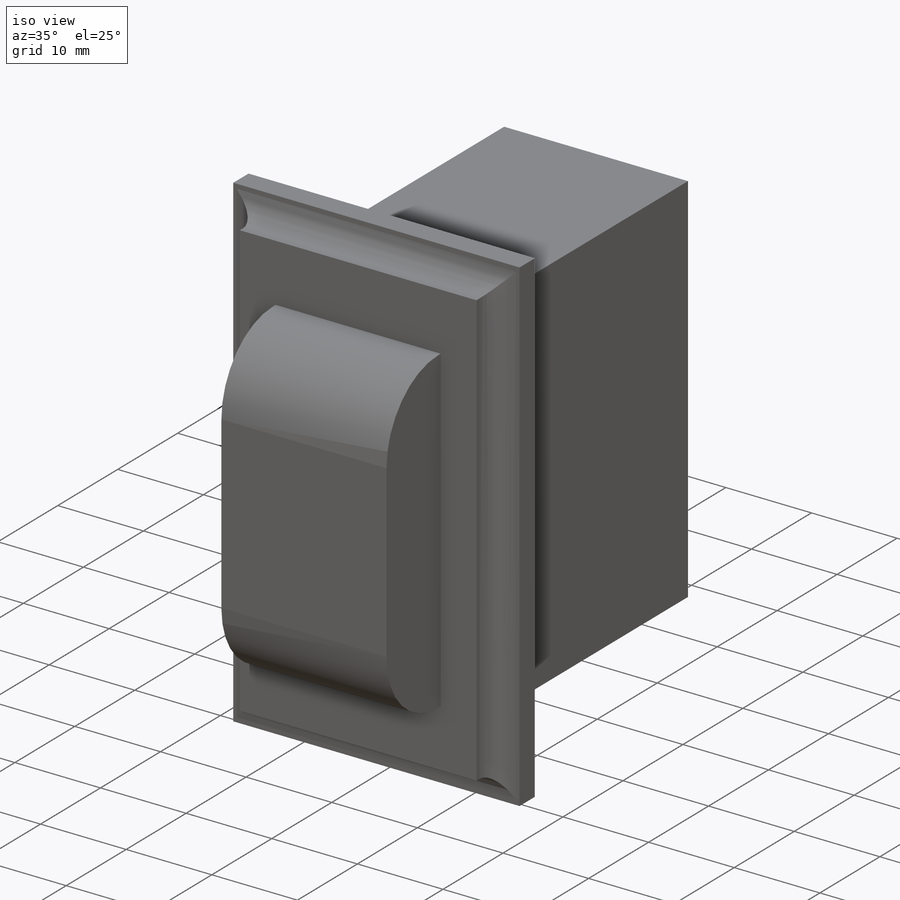
[diagram: iso view]
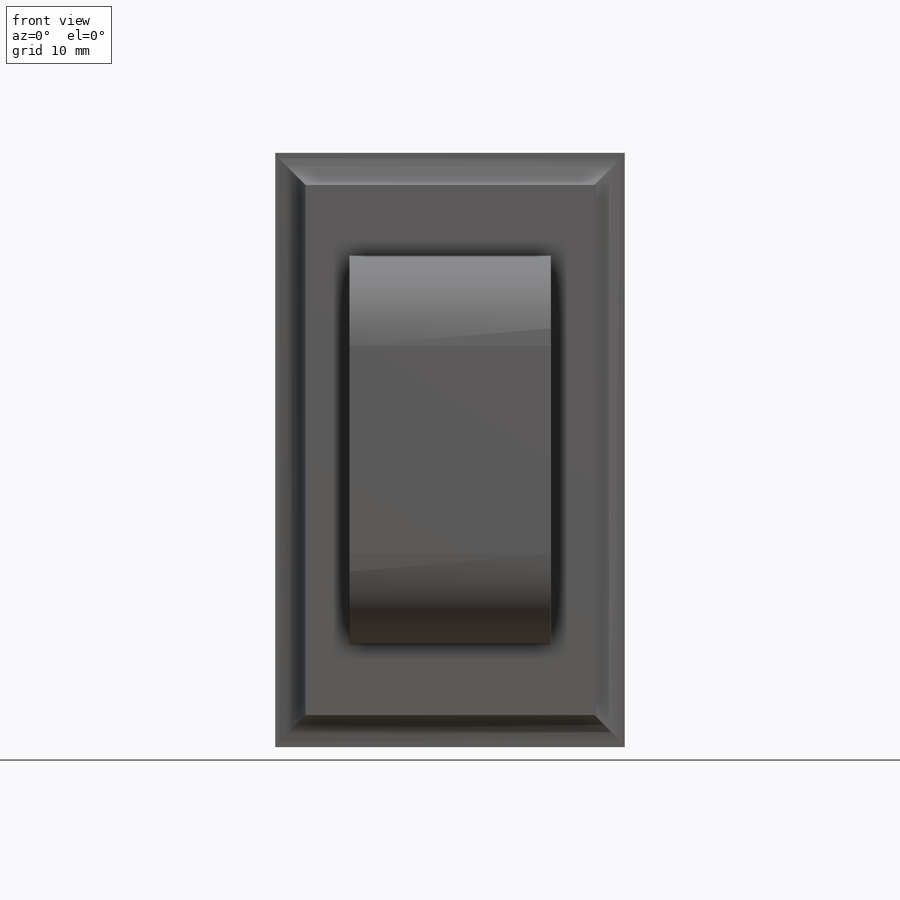
[diagram: front view]
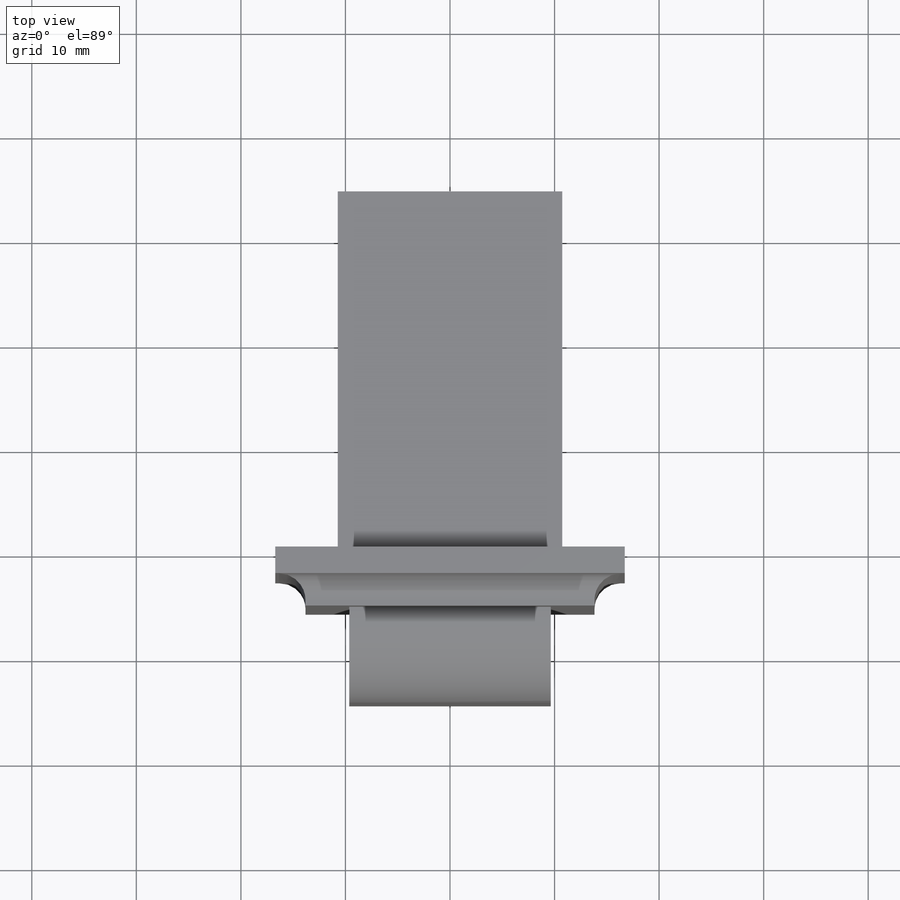
[diagram: top view]
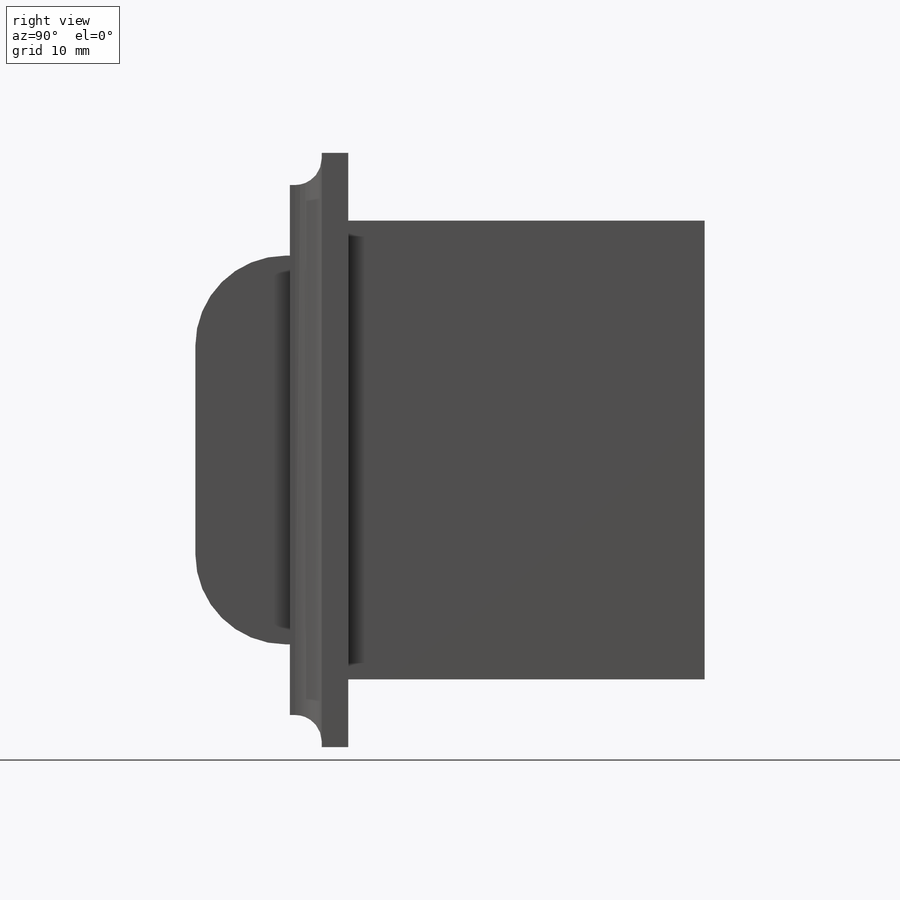
[diagram: right view]
SOLIDWORKS PART (.sldprt)
format: sldprt  version: not decoded by parser v0  size: 213,504 bytes
history: native  units: mm
features: sketch x4, extrude x4, fillet x2, material x1 (+12 scaffold rows collapsed)
feature tree (23):
  scaffold x12  (default folders/planes/origin — collapsed)
  material  "Material <not specified>"
  sketch  "Sketch1"  dims[D1=33.4264mm D2=56.8452mm]
  extrude  "Boss-Extrude1"  Depth=2.54mm
  sketch  "Sketch2"  dims[D1=27.6352mm D2=50.6984mm]
  extrude  "Boss-Extrude2"  Depth=3.048mm
  sketch  "Sketch3"  dims[D1=37.1856mm D2=19.2786mm]
  extrude  "Boss-Extrude3"  Depth=9.0424mm
  fillet  "Fillet1"  Radius=2.54mm
  fillet  "Fillet7"  Radius=8.636mm
  sketch  "Sketch4"  dims[D1=21.463mm D2=43.8912mm]
  extrude  "Boss-Extrude4"  Depth=34.0868mm
decode coverage: 10 of 10 modeling features carry decoded parameters
note: suppression state not decoded; provenance and decode notes live in map.json
